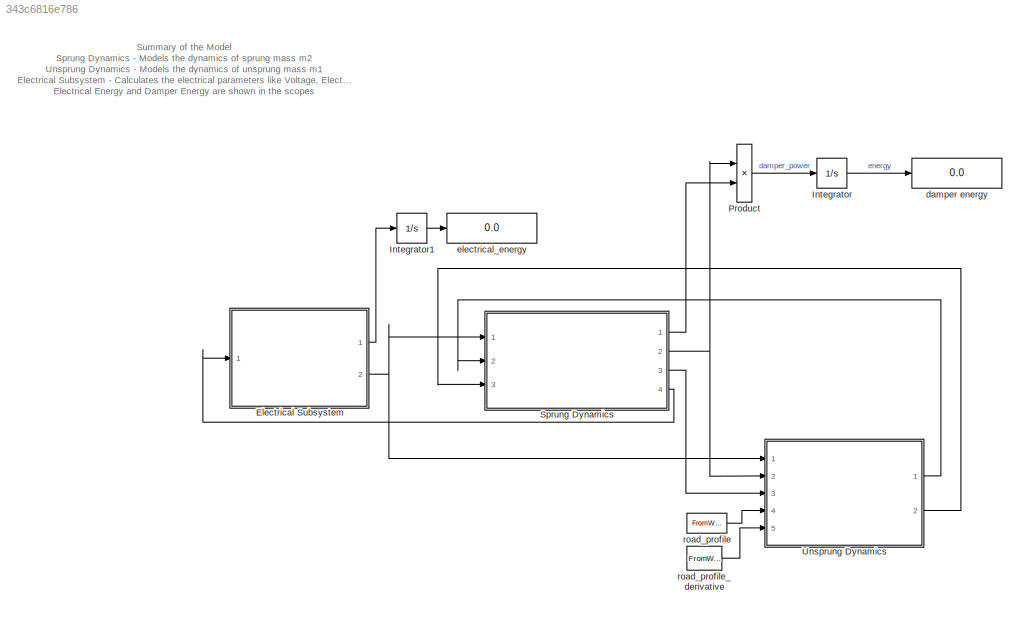
MODEL slx_343c6816e786
KIND model
CONFIG AbsTol = auto
CONFIG EnableMultiTasking = off
CONFIG FixedStep = auto
CONFIG MaxStep = 0.005
CONFIG MinStep = auto
CONFIG RelTol = 1e-3
CONFIG SampleTimeConstraint = Unconstrained
CONFIG SolverName = ode15s
CONFIG StartTime = 0.0
CONFIG StopTime = 120
WORKSPACE source: MATLAB code (in-file)
WORKSPACE sigma = 1*10^(-6)  (= 1e-06)
WORKSPACE S = 0.005
WORKSPACE epsp = 2.8
WORKSPACE delta = 1/100000  (= 1e-05)
WORKSPACE d = 1/100000  (= 1e-05)
WORKSPACE epso = 8.85*10^(-12)  (= 8.85e-12)
WORKSPACE Rl = 100000
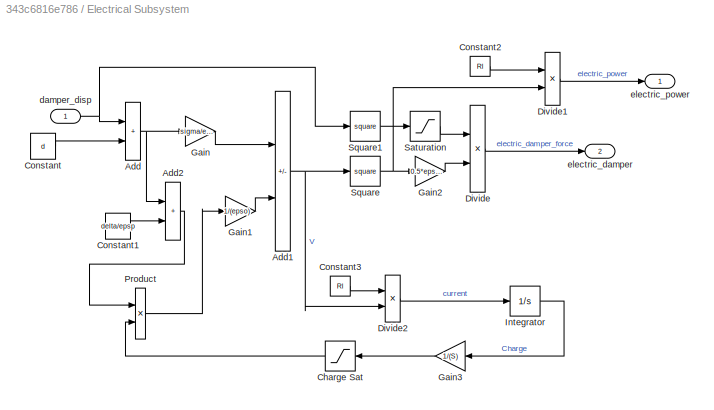
BLOCK [SubSystem] Electrical Subsystem
  Ports = [1, 2]
  RequestExecContextInheritance = off
BLOCK [Sum] Electrical Subsystem/Add
  IconShape = rectangular
  Ports = [2, 1]
BLOCK [Sum] Electrical Subsystem/Add1
  IconShape = rectangular
  Inputs = +-
  Ports = [2, 1]
BLOCK [Sum] Electrical Subsystem/Add2
  IconShape = rectangular
  Ports = [2, 1]
BLOCK [Saturate] Electrical Subsystem/Charge Sat
  LowerLimit = 0
  UpperLimit = sigma
BLOCK [Constant] Electrical Subsystem/Constant
  Value = d
BLOCK [Constant] Electrical Subsystem/Constant1
  Value = delta/epsp
BLOCK [Constant] Electrical Subsystem/Constant2
  Value = Rl
BLOCK [Constant] Electrical Subsystem/Constant3
  Value = Rl
BLOCK [Product] Electrical Subsystem/Divide
  Inputs = /*
  Ports = [2, 1]
BLOCK [Product] Electrical Subsystem/Divide1
  Inputs = /*
  Ports = [2, 1]
BLOCK [Product] Electrical Subsystem/Divide2
  Inputs = /*
  Ports = [2, 1]
BLOCK [Gain] Electrical Subsystem/Gain
  Gain = sigma/epso
BLOCK [Gain] Electrical Subsystem/Gain1
  Gain = 1/(epso)
BLOCK [Gain] Electrical Subsystem/Gain2
  Gain = 0.5*epsp*epso*S
BLOCK [Gain] Electrical Subsystem/Gain3
  Gain = 1/(S)
BLOCK [Integrator] Electrical Subsystem/Integrator
  InitialCondition = sigma
  Ports = [1, 1]
BLOCK [Product] Electrical Subsystem/Product
  Ports = [2, 1]
BLOCK [Saturate] Electrical Subsystem/Saturation
  LowerLimit = 0.001
  UpperLimit = inf
BLOCK [Math] Electrical Subsystem/Square
  Operator = square
  Ports = [1, 1]
BLOCK [Math] Electrical Subsystem/Square1
  Operator = square
  Ports = [1, 1]
BLOCK [Inport] Electrical Subsystem/damper_disp
  NameLocation = top
BLOCK [Outport] Electrical Subsystem/electric_damper
  Port = 2
BLOCK [Outport] Electrical Subsystem/electric_power
BLOCK [Integrator] Integrator
  Ports = [1, 1]
BLOCK [Integrator] Integrator1
  Ports = [1, 1]
BLOCK [Product] Product
  Ports = [2, 1]
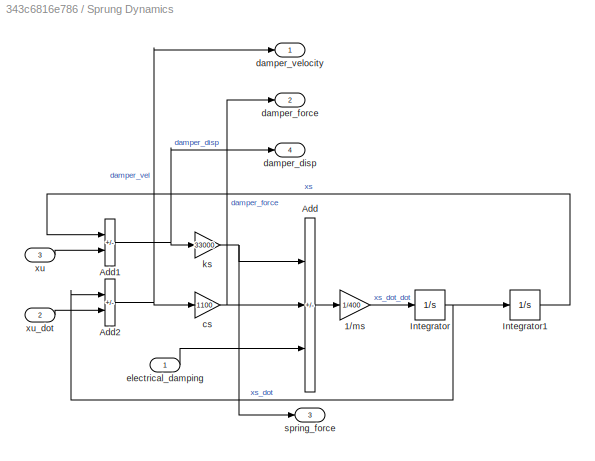
BLOCK [SubSystem] Sprung Dynamics
  Ports = [3, 4]
  RequestExecContextInheritance = off
BLOCK [Gain] Sprung Dynamics/1//ms
  Gain = 1/400
BLOCK [Sum] Sprung Dynamics/Add
  IconShape = rectangular
  Inputs = --+
  Ports = [3, 1]
BLOCK [Sum] Sprung Dynamics/Add1
  IconShape = rectangular
  Inputs = +-
  Ports = [2, 1]
BLOCK [Sum] Sprung Dynamics/Add2
  IconShape = rectangular
  Inputs = +-
  Ports = [2, 1]
BLOCK [Integrator] Sprung Dynamics/Integrator
  Ports = [1, 1]
BLOCK [Integrator] Sprung Dynamics/Integrator1
  Ports = [1, 1]
BLOCK [Gain] Sprung Dynamics/cs
  Gain = 1100
BLOCK [Outport] Sprung Dynamics/damper_disp
  Port = 4
BLOCK [Outport] Sprung Dynamics/damper_force
  Port = 2
BLOCK [Outport] Sprung Dynamics/damper_velocity
BLOCK [Inport] Sprung Dynamics/electrical_damping
BLOCK [Gain] Sprung Dynamics/ks
  Gain = 33000
  NameLocation = top
BLOCK [Outport] Sprung Dynamics/spring_force
  Port = 3
BLOCK [Inport] Sprung Dynamics/xu
  Port = 3
BLOCK [Inport] Sprung Dynamics/xu_dot
  Port = 2
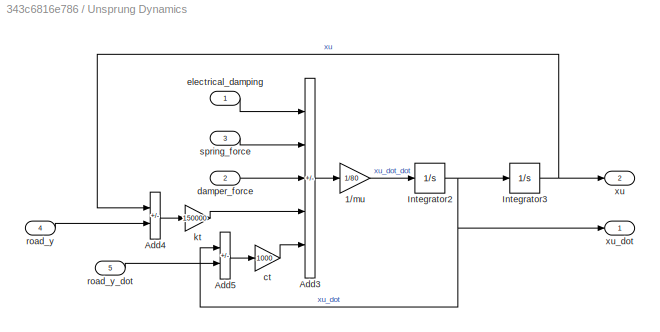
BLOCK [SubSystem] Unsprung Dynamics
  Ports = [5, 2]
  RequestExecContextInheritance = off
BLOCK [Gain] Unsprung Dynamics/1//mu
  Gain = 1/80
BLOCK [Sum] Unsprung Dynamics/Add3
  IconShape = rectangular
  Inputs = -++--
  Ports = [5, 1]
BLOCK [Sum] Unsprung Dynamics/Add4
  IconShape = rectangular
  Inputs = +-
  Ports = [2, 1]
BLOCK [Sum] Unsprung Dynamics/Add5
  IconShape = rectangular
  Inputs = +-
  Ports = [2, 1]
BLOCK [Integrator] Unsprung Dynamics/Integrator2
  Ports = [1, 1]
BLOCK [Integrator] Unsprung Dynamics/Integrator3
  Ports = [1, 1]
BLOCK [Gain] Unsprung Dynamics/ct
  Gain = 1000
BLOCK [Inport] Unsprung Dynamics/damper_force
  Port = 2
BLOCK [Inport] Unsprung Dynamics/electrical_damping
BLOCK [Gain] Unsprung Dynamics/kt
  Gain = 150000
BLOCK [Inport] Unsprung Dynamics/road_y
  Port = 4
BLOCK [Inport] Unsprung Dynamics/road_y_dot
  Port = 5
BLOCK [Inport] Unsprung Dynamics/spring_force
  Port = 3
BLOCK [Outport] Unsprung Dynamics/xu
  Port = 2
BLOCK [Outport] Unsprung Dynamics/xu_dot
BLOCK [Display] damper energy
  Decimation = 2
  Ports = [1]
BLOCK [Display] electrical_energy
  Decimation = 2
  Ports = [1]
BLOCK [FromWorkspace] road_profile
  NameLocation = top
  VariableName = rp
BLOCK [FromWorkspace] road_profile_derivative
  VariableName = rp_dot
ANNOTATION (root): Summary of the Model Sprung Dynamics - Models the dynamics of sprung mass m2 Unsprung Dynamics - Models the dynamics of unsprung mass m1 Electrical Subsystem - Calculates the electrical parameters like Voltage, Electrical Power and the force due to triboelectric element Electrical Energy and Damper Energy are shown in the scopes
NET Electrical Subsystem/Add1:1 -> Electrical Subsystem/Divide2:2, Electrical Subsystem/Square:1
LINE Electrical Subsystem/Add2:1 -> Electrical Subsystem/Product:1
NET Electrical Subsystem/Add:1 -> Electrical Subsystem/Add2:1, Electrical Subsystem/Gain:1
LINE Electrical Subsystem/Charge Sat:1 -> Electrical Subsystem/Product:2
LINE Electrical Subsystem/Constant1:1 -> Electrical Subsystem/Add2:2
LINE Electrical Subsystem/Constant2:1 -> Electrical Subsystem/Divide1:1
LINE Electrical Subsystem/Constant3:1 -> Electrical Subsystem/Divide2:1
LINE Electrical Subsystem/Constant:1 -> Electrical Subsystem/Add:2
LINE Electrical Subsystem/Divide1:1 -> Electrical Subsystem/electric_power:1
LINE Electrical Subsystem/Divide2:1 -> Electrical Subsystem/Integrator:1
LINE Electrical Subsystem/Divide:1 -> Electrical Subsystem/electric_damper:1
LINE Electrical Subsystem/Gain1:1 -> Electrical Subsystem/Add1:2
LINE Electrical Subsystem/Gain2:1 -> Electrical Subsystem/Divide:2
LINE Electrical Subsystem/Gain3:1 -> Electrical Subsystem/Charge Sat:1
LINE Electrical Subsystem/Gain:1 -> Electrical Subsystem/Add1:1
LINE Electrical Subsystem/Integrator:1 -> Electrical Subsystem/Gain3:1
LINE Electrical Subsystem/Product:1 -> Electrical Subsystem/Gain1:1
LINE Electrical Subsystem/Saturation:1 -> Electrical Subsystem/Divide:1
LINE Electrical Subsystem/Square1:1 -> Electrical Subsystem/Saturation:1
NET Electrical Subsystem/Square:1 -> Electrical Subsystem/Divide1:2, Electrical Subsystem/Gain2:1
NET Electrical Subsystem/damper_disp:1 -> Electrical Subsystem/Add:1, Electrical Subsystem/Square1:1
LINE Electrical Subsystem:1 -> Integrator1:1
NET Electrical Subsystem:2 -> Sprung Dynamics:1, Unsprung Dynamics:1
LINE Integrator1:1 -> electrical_energy:1
LINE Integrator:1 -> damper energy:1
LINE Product:1 -> Integrator:1
LINE Sprung Dynamics/1//ms:1 -> Sprung Dynamics/Integrator:1
NET Sprung Dynamics/Add1:1 -> Sprung Dynamics/damper_disp:1, Sprung Dynamics/ks:1
NET Sprung Dynamics/Add2:1 -> Sprung Dynamics/cs:1, Sprung Dynamics/damper_velocity:1
LINE Sprung Dynamics/Add:1 -> Sprung Dynamics/1//ms:1
LINE Sprung Dynamics/Integrator1:1 -> Sprung Dynamics/Add1:1
NET Sprung Dynamics/Integrator:1 -> Sprung Dynamics/Add2:1, Sprung Dynamics/Integrator1:1
NET Sprung Dynamics/cs:1 -> Sprung Dynamics/Add:2, Sprung Dynamics/damper_force:1
LINE Sprung Dynamics/electrical_damping:1 -> Sprung Dynamics/Add:3
NET Sprung Dynamics/ks:1 -> Sprung Dynamics/Add:1, Sprung Dynamics/spring_force:1
LINE Sprung Dynamics/xu:1 -> Sprung Dynamics/Add1:2
LINE Sprung Dynamics/xu_dot:1 -> Sprung Dynamics/Add2:2
LINE Sprung Dynamics:1 -> Product:2
NET Sprung Dynamics:2 -> Product:1, Unsprung Dynamics:2
LINE Sprung Dynamics:3 -> Unsprung Dynamics:3
LINE Sprung Dynamics:4 -> Electrical Subsystem:1
LINE Unsprung Dynamics/1//mu:1 -> Unsprung Dynamics/Integrator2:1
LINE Unsprung Dynamics/Add3:1 -> Unsprung Dynamics/1//mu:1
LINE Unsprung Dynamics/Add4:1 -> Unsprung Dynamics/kt:1
LINE Unsprung Dynamics/Add5:1 -> Unsprung Dynamics/ct:1
NET Unsprung Dynamics/Integrator2:1 -> Unsprung Dynamics/Add5:1, Unsprung Dynamics/Integrator3:1, Unsprung Dynamics/xu_dot:1
NET Unsprung Dynamics/Integrator3:1 -> Unsprung Dynamics/Add4:1, Unsprung Dynamics/xu:1
LINE Unsprung Dynamics/ct:1 -> Unsprung Dynamics/Add3:5
LINE Unsprung Dynamics/damper_force:1 -> Unsprung Dynamics/Add3:3
LINE Unsprung Dynamics/electrical_damping:1 -> Unsprung Dynamics/Add3:1
LINE Unsprung Dynamics/kt:1 -> Unsprung Dynamics/Add3:4
LINE Unsprung Dynamics/road_y:1 -> Unsprung Dynamics/Add4:2
LINE Unsprung Dynamics/road_y_dot:1 -> Unsprung Dynamics/Add5:2
LINE Unsprung Dynamics/spring_force:1 -> Unsprung Dynamics/Add3:2
LINE Unsprung Dynamics:1 -> Sprung Dynamics:2
LINE Unsprung Dynamics:2 -> Sprung Dynamics:3
LINE road_profile:1 -> Unsprung Dynamics:4
LINE road_profile_derivative:1 -> Unsprung Dynamics:5
note: NET lines group one-source signal fan-out (src -> all destinations, sorted); 1:1 wires keep LINE
